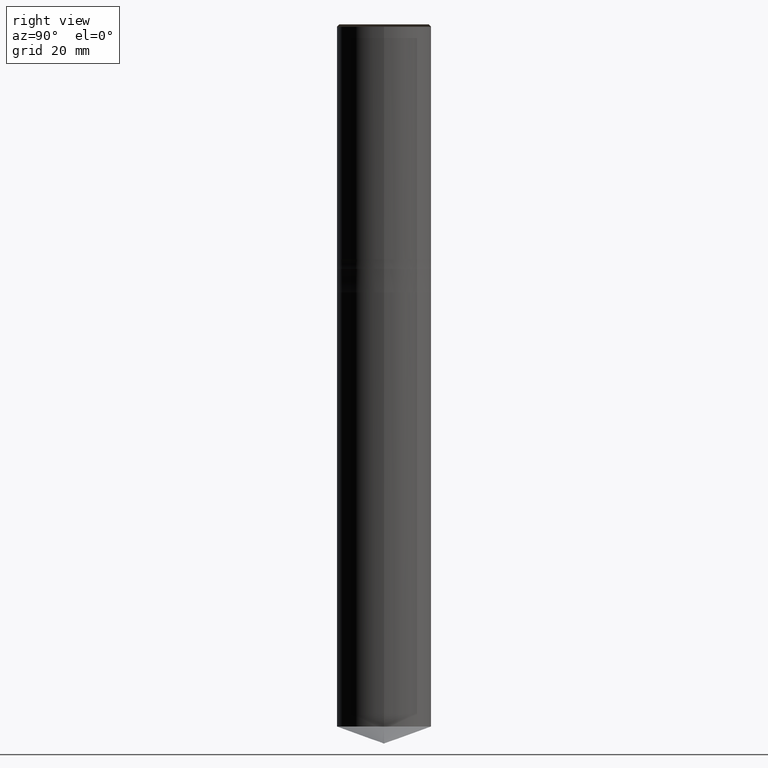
[diagram: clean part render]
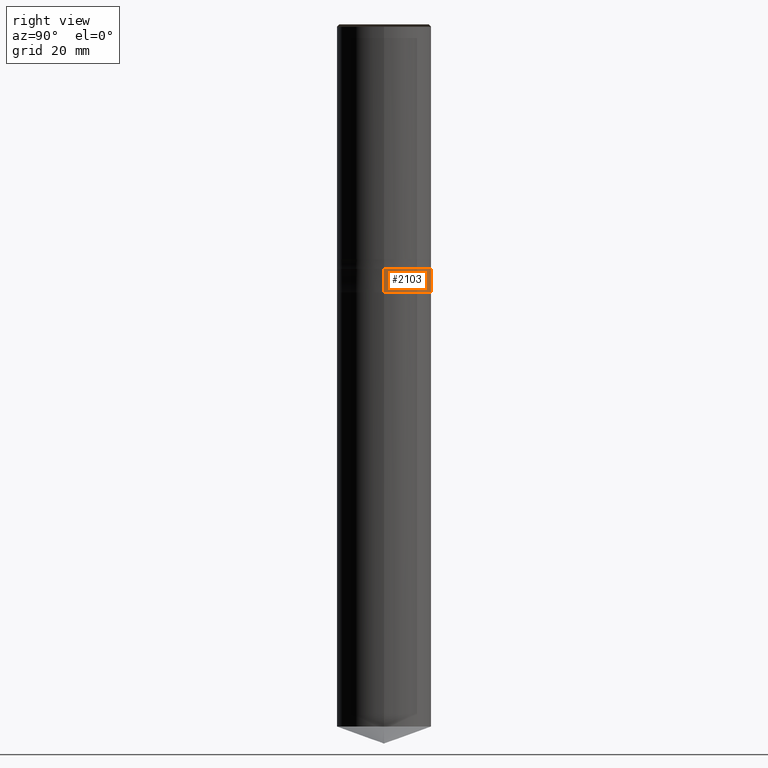
[diagram: same view with one face highlighted and labeled with its STEP entity id]
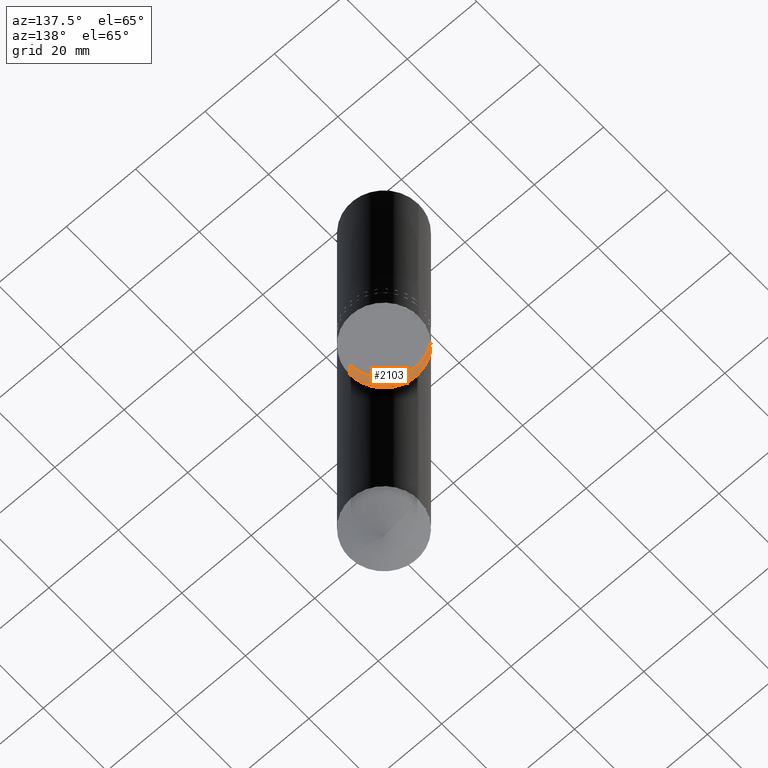
[diagram: same view with one face highlighted and labeled with its STEP entity id]
A machine part, right view. The second image highlights one B-rep face of the part: STEP entity #2103.
A second angle (auxiliary view) of the same face is appended — the face is thin or edge-on in the first view.
In plain terms, the highlighted face is a freeform B-spline surface patch.
Its self-contained STEP definition (entity closure, byte-faithful):
#1910=CARTESIAN_POINT('',(10.0,0.0,-7.0));
#1911=CARTESIAN_POINT('',(10.0,10.0,-7.0));
#1912=CARTESIAN_POINT('',(0.0,10.0,-7.0));
#1913=CARTESIAN_POINT('',(-10.0,10.0,-7.0));
#1914=CARTESIAN_POINT('',(-10.0,0.0,-7.0));
#1922=CARTESIAN_POINT('',(10.0,0.0,-2.0));
#1923=CARTESIAN_POINT('',(10.0,10.0,-2.0));
#1924=CARTESIAN_POINT('',(0.0,10.0,-2.0));
#1925=CARTESIAN_POINT('',(-10.0,10.0,-2.0));
#1926=CARTESIAN_POINT('',(-10.0,0.0,-2.0));
#2084=(
BOUNDED_SURFACE()
B_SPLINE_SURFACE(1,2,(
(#1910,#1911,#1912,#1913,#1914),
(#1922,#1923,#1924,#1925,#1926)
), .UNSPECIFIED.,.F.,.F.,.F.)
B_SPLINE_SURFACE_WITH_KNOTS((2,2),(3,2,3),(
0.0,1.0),(
0.0,0.5,1.0), .UNSPECIFIED.)
GEOMETRIC_REPRESENTATION_ITEM()
RATIONAL_B_SPLINE_SURFACE(((1.0,0.707106781187,1.0,0.707106781187,1.0),
(1.0,0.707106781187,1.0,0.707106781187,1.0)
))
REPRESENTATION_ITEM('')
SURFACE()
);
#2085=(
BOUNDED_CURVE()
B_SPLINE_CURVE(2,(#1914,#1913,#1912,#1911,#1910),.UNSPECIFIED.,.F.,.F.)
B_SPLINE_CURVE_WITH_KNOTS((3,2,3),
(0.0,0.5,1.0),.UNSPECIFIED.)
CURVE()
GEOMETRIC_REPRESENTATION_ITEM()
RATIONAL_B_SPLINE_CURVE((1.0,0.707106781187,1.0,0.707106781187,1.0))
REPRESENTATION_ITEM('')
);
#2086=(
BOUNDED_CURVE()
B_SPLINE_CURVE(1,(#1910,#1922),.UNSPECIFIED.,.F.,.F.)
B_SPLINE_CURVE_WITH_KNOTS((2,2),
(0.0,1.0),.UNSPECIFIED.)
CURVE()
GEOMETRIC_REPRESENTATION_ITEM()
RATIONAL_B_SPLINE_CURVE((1.0,1.0))
REPRESENTATION_ITEM('')
);
#2087=(
BOUNDED_CURVE()
B_SPLINE_CURVE(2,(#1922,#1923,#1924,#1925,#1926),.UNSPECIFIED.,.F.,.F.)
B_SPLINE_CURVE_WITH_KNOTS((3,2,3),
(0.0,0.5,1.0),.UNSPECIFIED.)
CURVE()
GEOMETRIC_REPRESENTATION_ITEM()
RATIONAL_B_SPLINE_CURVE((1.0,0.707106781187,1.0,0.707106781187,1.0))
REPRESENTATION_ITEM('')
);
#2088=(
BOUNDED_CURVE()
B_SPLINE_CURVE(1,(#1926,#1914),.UNSPECIFIED.,.F.,.F.)
B_SPLINE_CURVE_WITH_KNOTS((2,2),
(0.0,1.0),.UNSPECIFIED.)
CURVE()
GEOMETRIC_REPRESENTATION_ITEM()
RATIONAL_B_SPLINE_CURVE((1.0,1.0))
REPRESENTATION_ITEM('')
);
#2089=VERTEX_POINT('',#1910);
#2090=VERTEX_POINT('',#1914);
#2091=VERTEX_POINT('',#1922);
#2092=VERTEX_POINT('',#1926);
#2093=EDGE_CURVE('',#2090,#2089,#2085,.T.);
#2094=EDGE_CURVE('',#2089,#2091,#2086,.T.);
#2095=EDGE_CURVE('',#2091,#2092,#2087,.T.);
#2096=EDGE_CURVE('',#2092,#2090,#2088,.T.);
#2097=ORIENTED_EDGE('',*,*,#2093,.T.);
#2098=ORIENTED_EDGE('',*,*,#2094,.T.);
#2099=ORIENTED_EDGE('',*,*,#2095,.T.);
#2100=ORIENTED_EDGE('',*,*,#2096,.T.);
#2101=EDGE_LOOP('',(#2097,#2098,#2099,#2100));
#2102=FACE_OUTER_BOUND('',#2101,.T.);
#2103=ADVANCED_FACE('',(#2102),#2084,.T.);